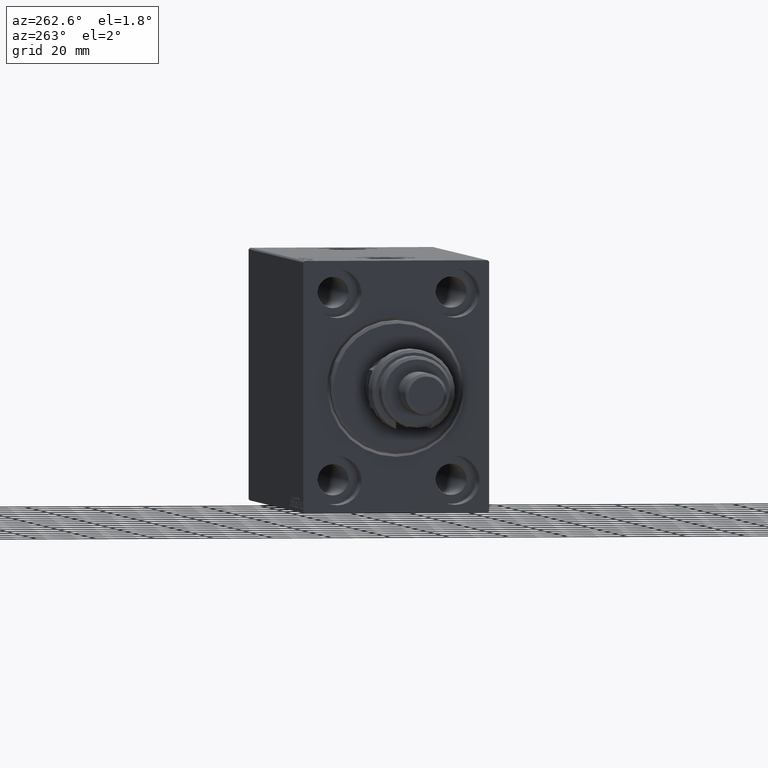
[diagram: clean part render]
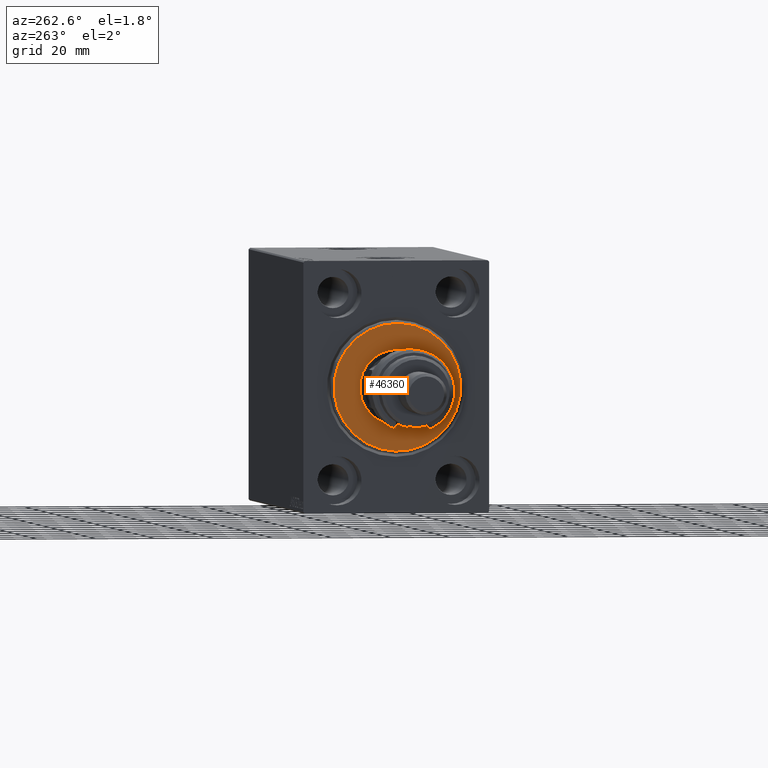
[diagram: same view with one face highlighted and labeled with its STEP entity id]
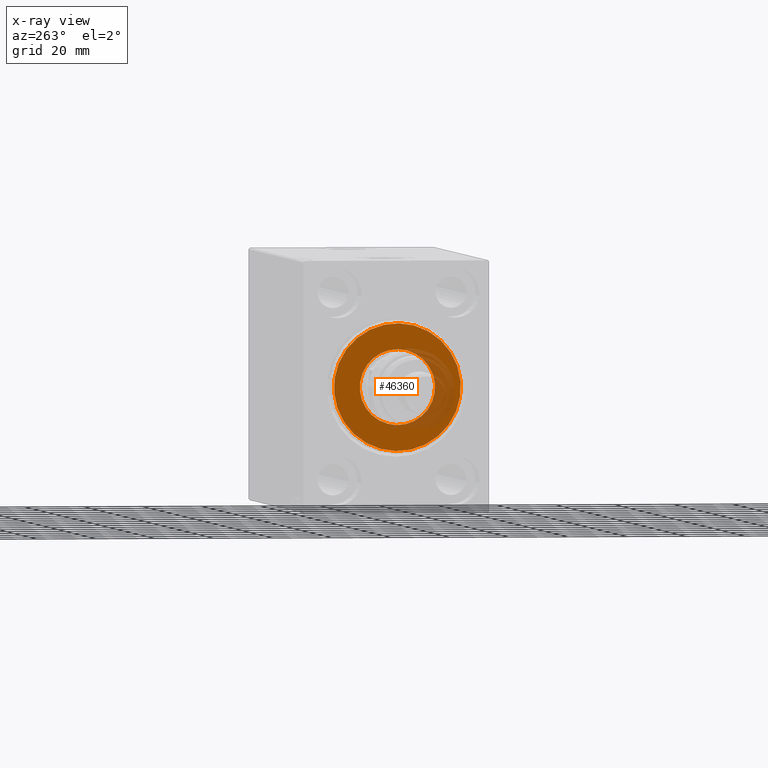
[diagram: x-ray of the same camera — body ghosted, the highlighted face saturated]
A machine part, auxiliary view. The second image highlights one B-rep face of the part: STEP entity #46360.
The next image is the same camera in x-ray: the body ghosted, the highlighted face saturated — about 20% of this face is hidden behind the body in this view.
In plain terms, the highlighted planar face has unit normal (-1, 0, 0).
Its self-contained STEP definition (entity closure, byte-faithful):
#101 = VERTEX_POINT ( 'NONE', #39412 ) ;
#415 = CIRCLE ( 'NONE', #21589, 12.75000000000000000 ) ;
#2105 = DIRECTION ( 'NONE',  ( 1.000000000000000000, -0.000000000000000000, 0.000000000000000000 ) ) ;
#3505 = CARTESIAN_POINT ( 'NONE',  ( 3.000000000000000000, 0.000000000000000000, 0.000000000000000000 ) ) ;
#5166 = CARTESIAN_POINT ( 'NONE',  ( 3.000000000000000000, 0.000000000000000000, 0.000000000000000000 ) ) ;
#8949 = DIRECTION ( 'NONE',  ( -1.000000000000000000, 0.000000000000000000, -0.000000000000000000 ) ) ;
#11949 = CIRCLE ( 'NONE', #38426, 21.50000000000000355 ) ;
#11982 = EDGE_CURVE ( 'NONE', #37348, #35307, #38328, .T. ) ;
#12964 = DIRECTION ( 'NONE',  ( 0.000000000000000000, 0.000000000000000000, -1.000000000000000000 ) ) ;
#14395 = DIRECTION ( 'NONE',  ( 0.000000000000000000, 0.000000000000000000, -1.000000000000000000 ) ) ;
#15796 = CARTESIAN_POINT ( 'NONE',  ( 3.000000000000000000, 0.000000000000000000, 21.50000000000000355 ) ) ;
#16336 = CARTESIAN_POINT ( 'NONE',  ( 3.000000000000000000, 0.000000000000000000, 0.000000000000000000 ) ) ;
#17012 = CARTESIAN_POINT ( 'NONE',  ( 3.000000000000000000, 0.000000000000000000, 12.75000000000000000 ) ) ;
#18285 = AXIS2_PLACEMENT_3D ( 'NONE', #3505, #46828, #14395 ) ;
#19692 = EDGE_CURVE ( 'NONE', #35307, #37348, #11949, .T. ) ;
#21589 = AXIS2_PLACEMENT_3D ( 'NONE', #5166, #8949, #12964 ) ;
#22120 = PLANE ( 'NONE',  #29923 ) ;
#23142 = EDGE_LOOP ( 'NONE', ( #39115, #25239 ) ) ;
#25239 = ORIENTED_EDGE ( 'NONE', *, *, #32653, .T. ) ;
#25440 = DIRECTION ( 'NONE',  ( 0.000000000000000000, 0.000000000000000000, -1.000000000000000000 ) ) ;
#25673 = FACE_OUTER_BOUND ( 'NONE', #42881, .T. ) ;
#26338 = CARTESIAN_POINT ( 'NONE',  ( 3.000000000000000000, 2.694222958124177598E-15, -21.50000000000000355 ) ) ;
#27203 = DIRECTION ( 'NONE',  ( 0.000000000000000000, 0.000000000000000000, -1.000000000000000000 ) ) ;
#28652 = CARTESIAN_POINT ( 'NONE',  ( 3.000000000000000000, 0.000000000000000000, 0.000000000000000000 ) ) ;
#28778 = CARTESIAN_POINT ( 'NONE',  ( 3.000000000000000000, 0.000000000000000000, 0.000000000000000000 ) ) ;
#29923 = AXIS2_PLACEMENT_3D ( 'NONE', #28778, #43438, #25440 ) ;
#30146 = VERTEX_POINT ( 'NONE', #17012 ) ;
#32176 = ORIENTED_EDGE ( 'NONE', *, *, #11982, .T. ) ;
#32653 = EDGE_CURVE ( 'NONE', #101, #30146, #46264, .T. ) ;
#33147 = ORIENTED_EDGE ( 'NONE', *, *, #19692, .T. ) ;
#33583 = DIRECTION ( 'NONE',  ( 0.000000000000000000, 0.000000000000000000, -1.000000000000000000 ) ) ;
#35307 = VERTEX_POINT ( 'NONE', #26338 ) ;
#37348 = VERTEX_POINT ( 'NONE', #15796 ) ;
#38328 = CIRCLE ( 'NONE', #43636, 21.50000000000000355 ) ;
#38426 = AXIS2_PLACEMENT_3D ( 'NONE', #16336, #2105, #27203 ) ;
#39115 = ORIENTED_EDGE ( 'NONE', *, *, #45221, .T. ) ;
#39412 = CARTESIAN_POINT ( 'NONE',  ( 3.000000000000000000, 1.561424668912874914E-15, -12.75000000000000000 ) ) ;
#42881 = EDGE_LOOP ( 'NONE', ( #32176, #33147 ) ) ;
#43089 = DIRECTION ( 'NONE',  ( 1.000000000000000000, -0.000000000000000000, 0.000000000000000000 ) ) ;
#43438 = DIRECTION ( 'NONE',  ( 1.000000000000000000, -0.000000000000000000, 0.000000000000000000 ) ) ;
#43636 = AXIS2_PLACEMENT_3D ( 'NONE', #28652, #43089, #33583 ) ;
#44125 = FACE_BOUND ( 'NONE', #23142, .T. ) ;
#45221 = EDGE_CURVE ( 'NONE', #30146, #101, #415, .T. ) ;
#46264 = CIRCLE ( 'NONE', #18285, 12.75000000000000000 ) ;
#46360 = ADVANCED_FACE ( 'NONE', ( #25673, #44125 ), #22120, .T. ) ;
#46828 = DIRECTION ( 'NONE',  ( -1.000000000000000000, 0.000000000000000000, -0.000000000000000000 ) ) ;